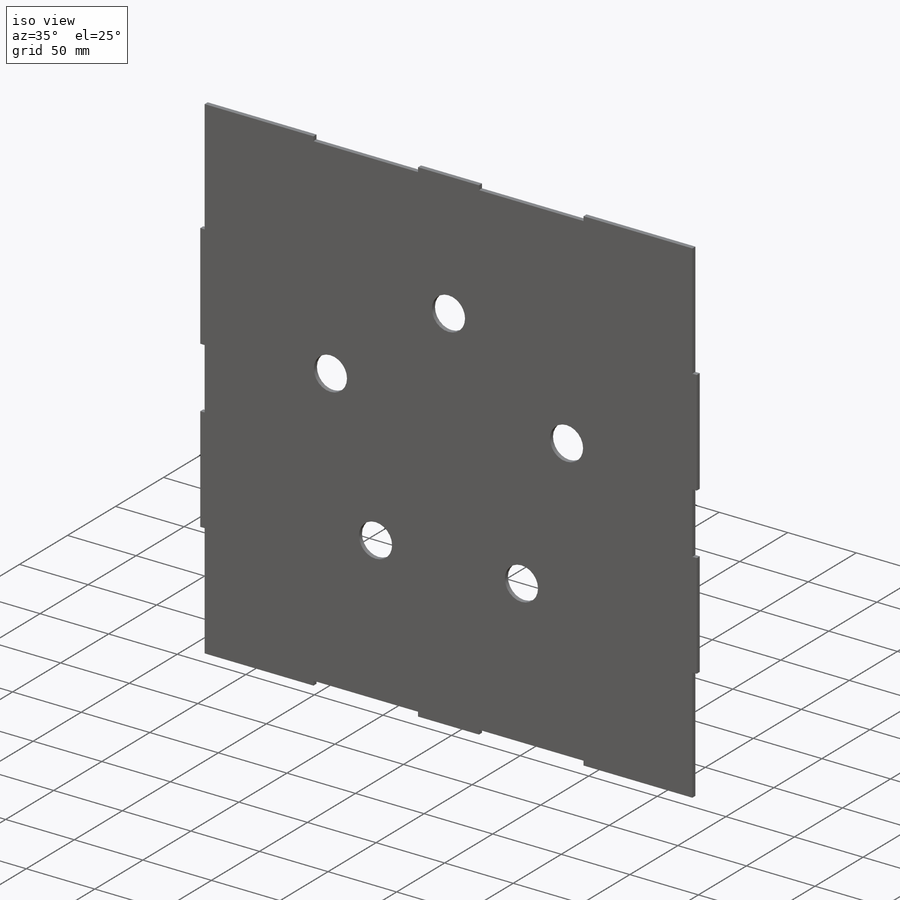
[diagram: iso view]
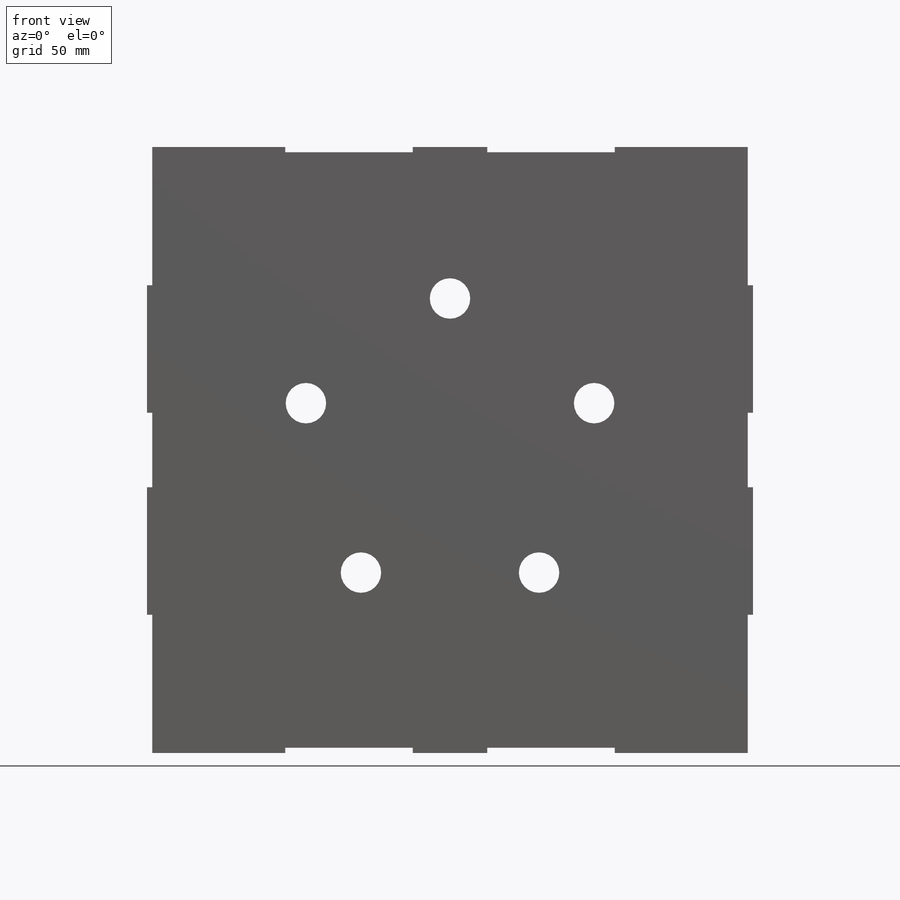
[diagram: front view]
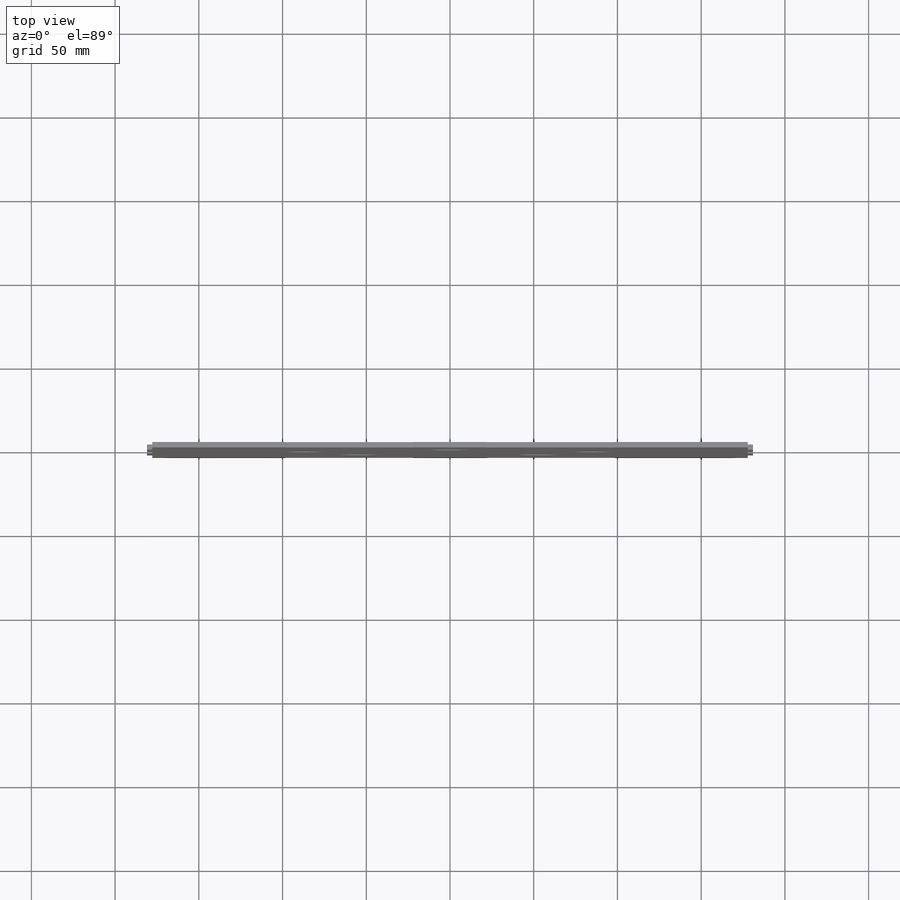
[diagram: top view]
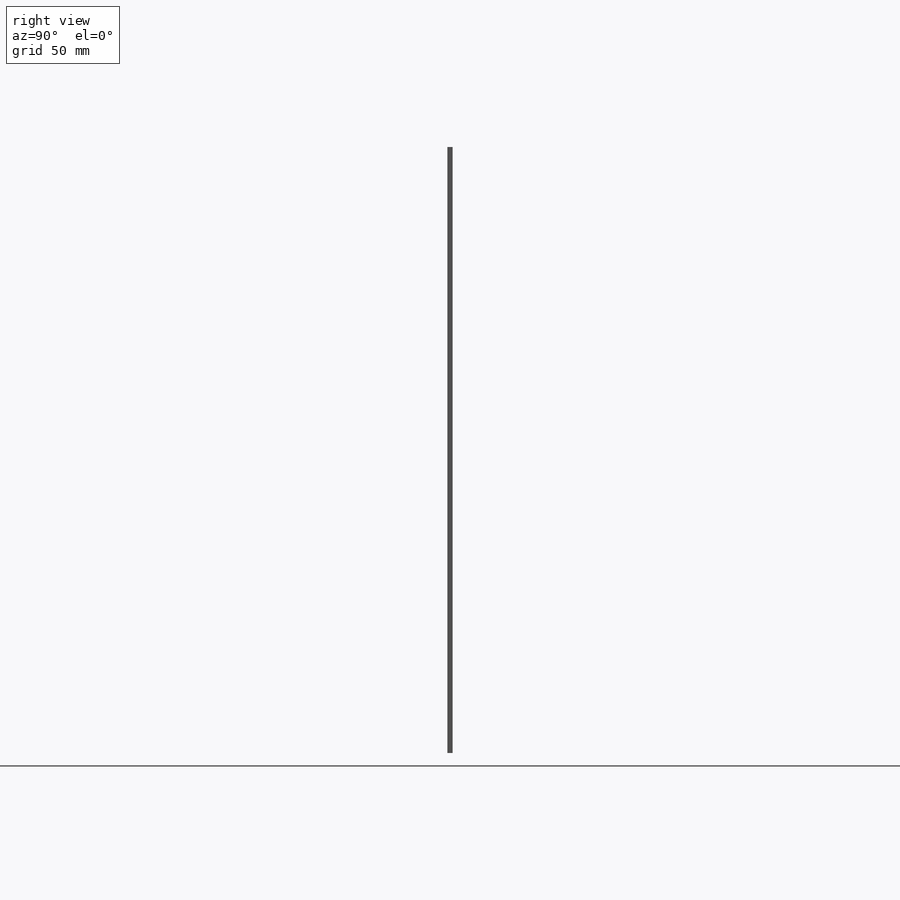
[diagram: right view]
SOLIDWORKS PART (.sldprt)
format: sldprt  version: not decoded by parser v0  size: 220,160 bytes
history: native  units: mm
features: sketch x3, cut_extrude x2, material x1, extrude x1 (+12 scaffold rows collapsed)
feature tree (19):
  scaffold x12  (default folders/planes/origin — collapsed)
  material  "Material <not specified>"
  sketch  "Sketch1"  dims[D1=361.95mm D2=361.95mm]
  extrude  "Boss-Extrude1"  Depth=3.175mm
  sketch  "Sketch2"  dims[c1.D1=3.175mm c1.D2=3.175mm c1.D3=3.175mm c1.D4=76.2mm c1.D5=76.2mm c2.D1=76.2mm c2.D2=76.2mm c2.D3=3.175mm c2.D4=3.175mm c2.D5=44.45mm c2.D6=79.375mm c2.D7=3.175mm c2.D8=3.175mm c2.D9=3.175mm c2.D10=76.2mm c2.D11=76.2mm c2.D12=44.45mm c2.D13=82.55mm c3.D3=85.725mm c3.D4=79.375mm c4.D3=82.55mm c4.D4=82.55mm c4.D6=3.175mm]
  cut_extrude  "Cut-Extrude1"  Depth=3.175mm
  sketch  "Sketch3"  dims[c1.D8=180.975mm c1.D9=24.1554mm c1.D1=3.175mm c1.D2=3.175mm c1.D3=3.175mm c1.D4=76.2mm c1.D5=82.55mm c1.D6=82.55mm c1.D7=76.2mm c2.D8=180.975mm c2.D10=5.0]
  cut_extrude  "Cut-Extrude2"  Depth=3.175mm
decode coverage: 6 of 6 modeling features carry decoded parameters
note: suppression state not decoded; provenance and decode notes live in map.json
